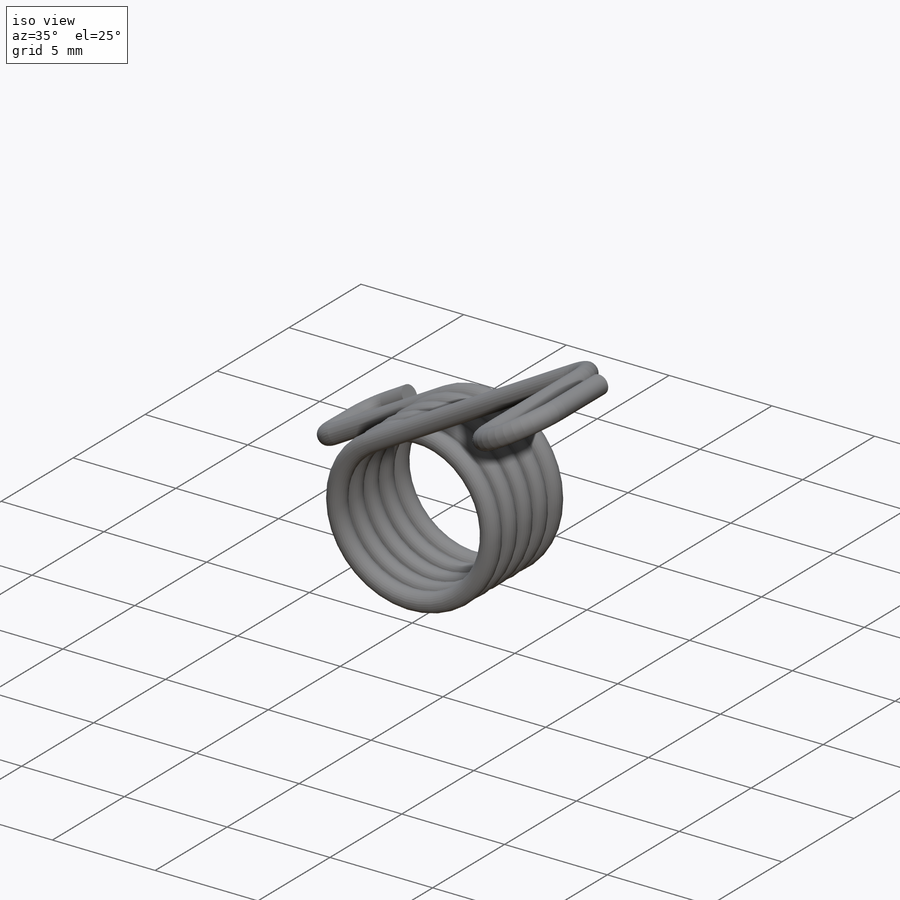
[diagram: iso view]
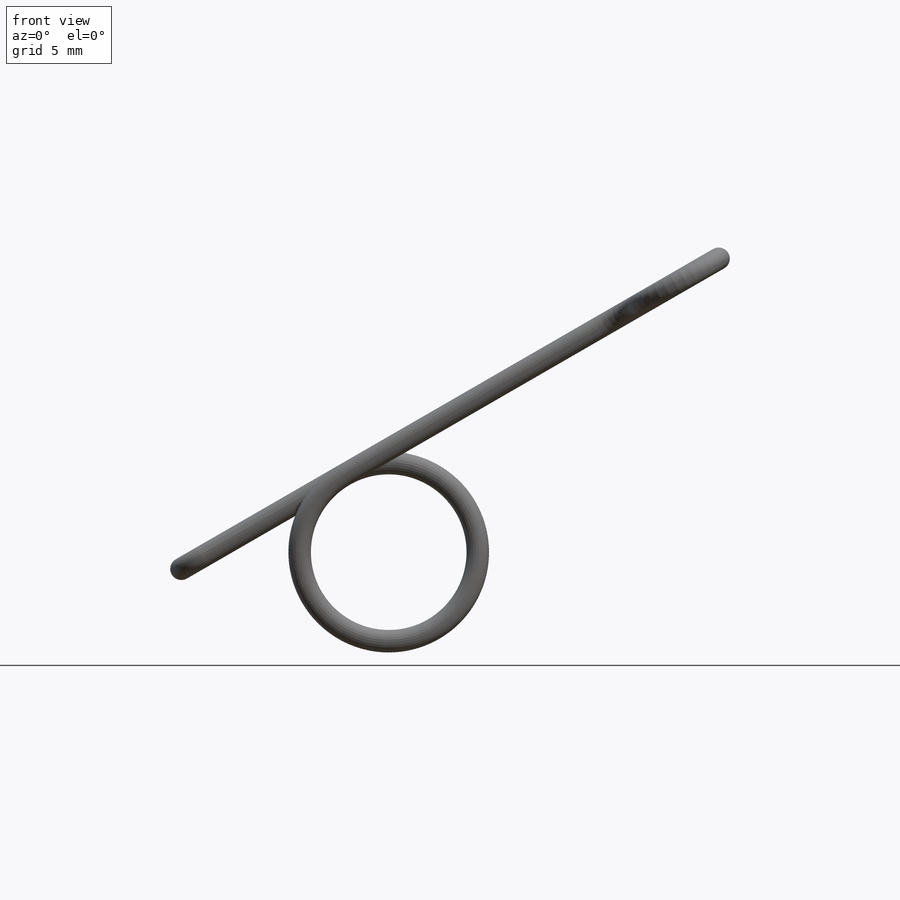
[diagram: front view]
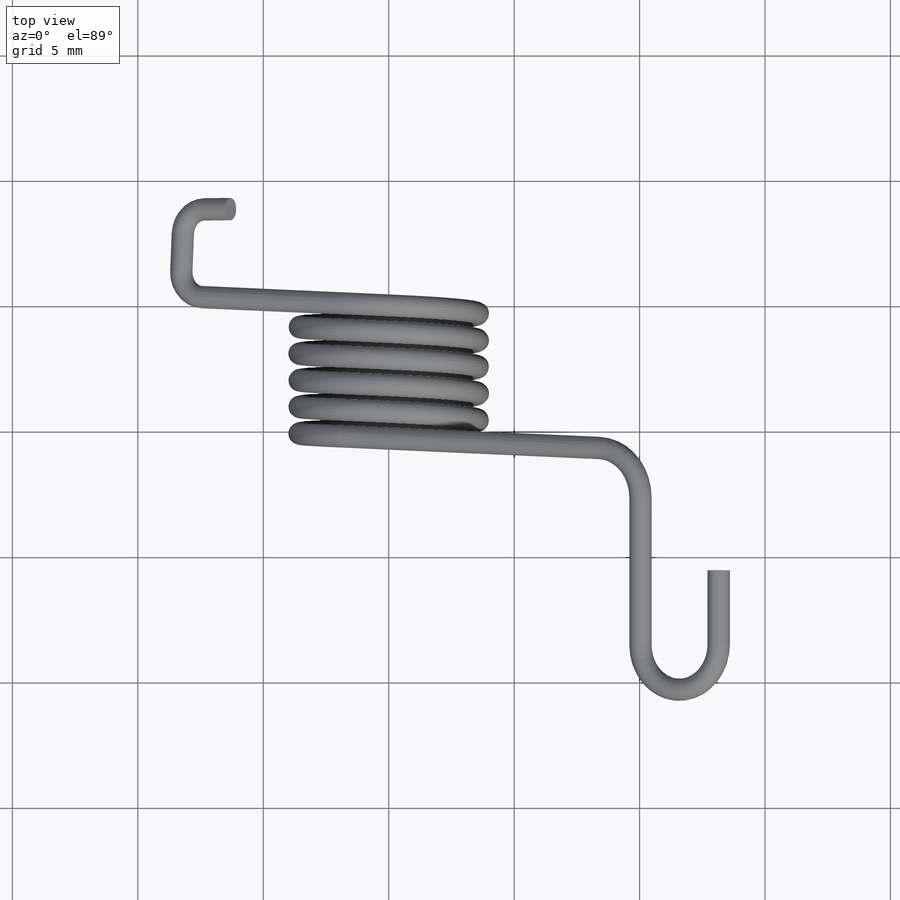
[diagram: top view]
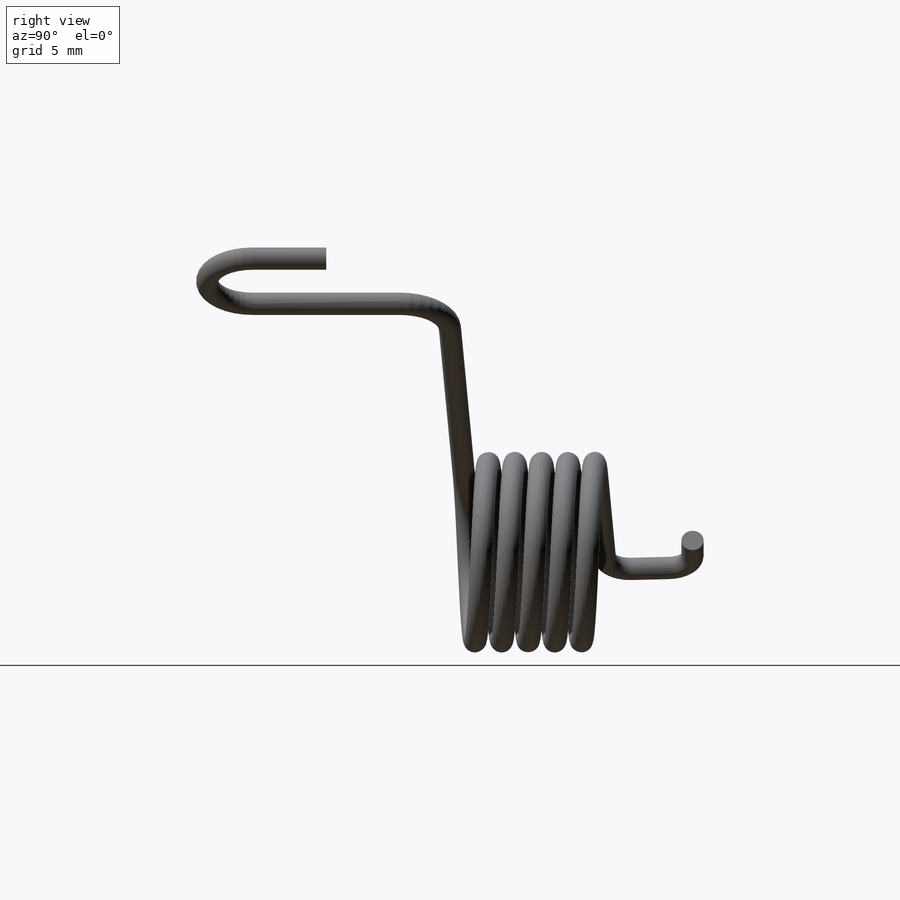
[diagram: right view]
SOLIDWORKS PART (.sldprt)
format: sldprt  version: not decoded by parser v0  size: 406,528 bytes
history: native  units: mm
features: sketch x9, plane x3, sweep x3, extrude x2, material x1, helix x1 (+12 scaffold rows collapsed)
feature tree (31):
  scaffold x12  (default folders/planes/origin — collapsed)
  material  "Material <not specified>"
  sketch  "Sketch1"  dims[D1=7.112mm]
  helix  "Helix/Spiral1"  Pitch=5.305mm
  plane  "Plane1"
  sketch  "Sketch2"  dims[D1=0.889mm]
  sweep  "Sweep1"
  sketch  "Sketch3"
  extrude  "Boss-Extrude1"  Depth=6.55mm
  sketch  "Sketch4"
  extrude  "Boss-Extrude2"  Depth=11.75mm
  plane  "Plane2"
  sketch  "3DSketch2"
  sketch  "Sketch6"  dims[c1.D1=2.0mm c1.D3=1.8mm c1.D2=~5.874957mm c2.D3=~4.213078mm c2.D4=~5.874957mm]
  sweep  "Sweep2"
  plane  "Plane3"
  sketch  "3DSketch3"
  sketch  "Sketch8"  dims[D1=2.0mm D2=3.0mm]
  sketch  "Sketch9"  dims[c1.D1=1.0mm c1.D3=1.0mm c2.D1=1.0mm c2.D4=1.0mm c2.D2=~1.260627mm c3.D2=90.0deg c3.D3=1.5mm c3.D5=1.2mm]
  sweep  "Sweep3"
decode coverage: 8 of 15 modeling features carry decoded parameters
note: ~ marks probable driven/reference dimensions
note: suppression state not decoded; provenance and decode notes live in map.json
